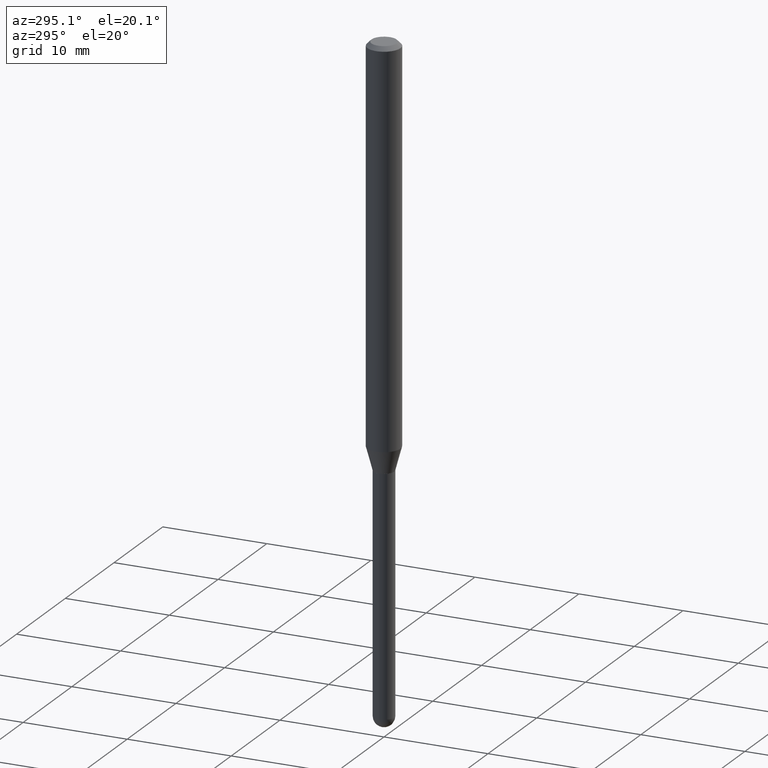
[diagram: clean part render]
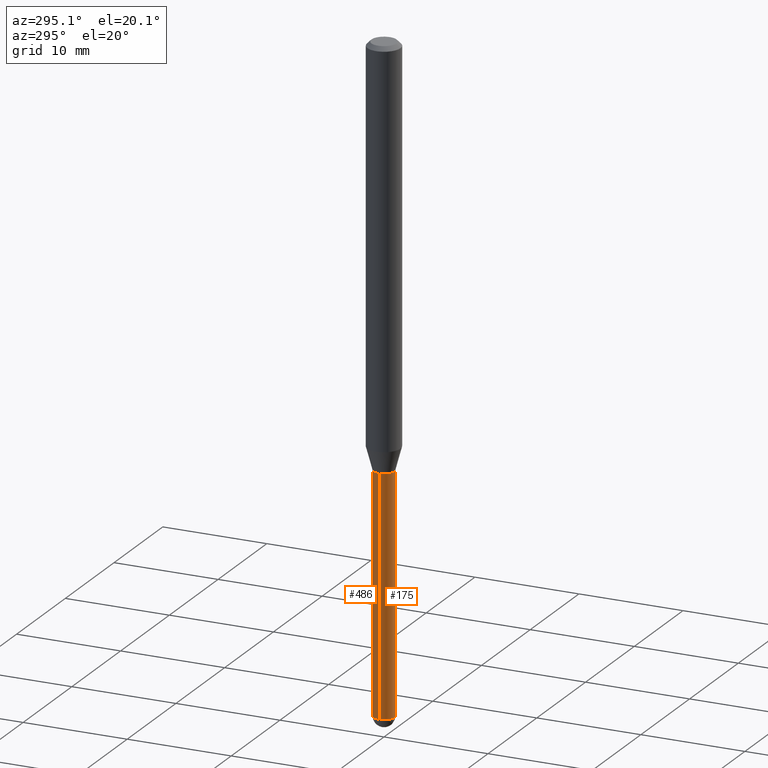
[diagram: same view with one multi-face feature highlighted, each face labeled with its STEP entity id]
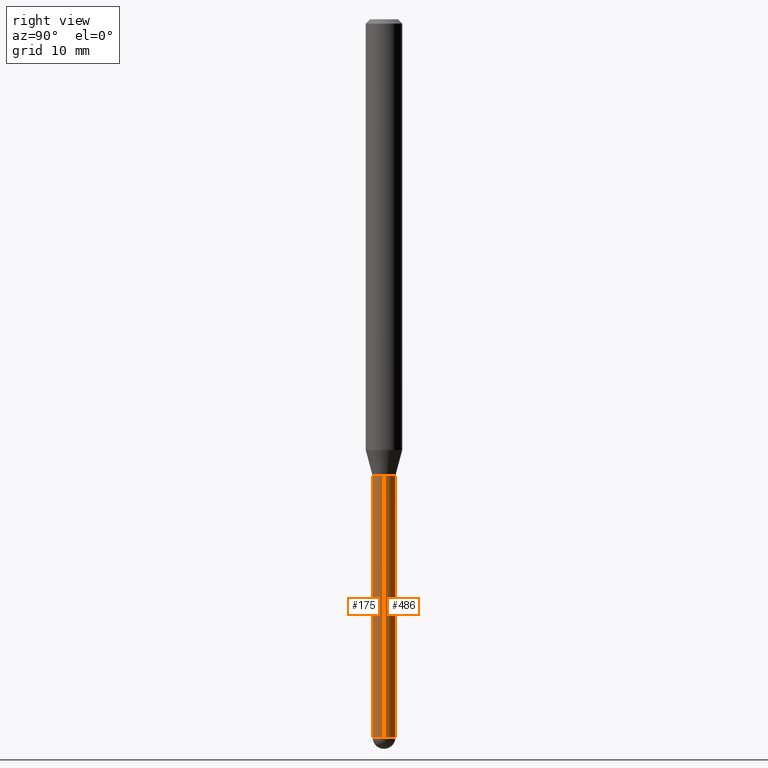
[diagram: same view with one multi-face feature highlighted, each face labeled with its STEP entity id]
A machine part, auxiliary view. The highlighted faces form ONE feature: a constant-radius fillet chain: 2 tangent blend faces with common blend radius 0.9906 mm. The faces share edges in the B-rep.
A second angle (right view) of the same feature is appended — it is thin or edge-on in the first view.
Their STEP definitions:
[1] entity #175 (Cylinder):
#20 = VERTEX_POINT ( 'NONE', #435 ) ;
#28 = DIRECTION ( 'NONE',  ( 1.000000000000000000, -6.982962677686283277E-15, 0.000000000000000000 ) ) ;
#31 = CARTESIAN_POINT ( 'NONE',  ( 0.03899999999999999994, -5.733012358380444123E-15, -1.564000000000000057 ) ) ;
#48 = DIRECTION ( 'NONE',  ( -2.445468806185136877E-29, 3.491481338843145188E-15, 1.000000000000000000 ) ) ;
#49 = VECTOR ( 'NONE', #48, 39.37007874015748143 ) ;
#54 = DIRECTION ( 'NONE',  ( 1.000000000000000000, -6.982962677686265922E-15, 4.876176775795935793E-29 ) ) ;
#59 = EDGE_LOOP ( 'NONE', ( #423, #439, #453, #292, #76 ) ) ;
#65 = EDGE_CURVE ( 'NONE', #66, #315, #254, .T. ) ;
#66 = VERTEX_POINT ( 'NONE', #413 ) ;
#76 = ORIENTED_EDGE ( 'NONE', *, *, #65, .F. ) ;
#78 = CIRCLE ( 'NONE', #418, 0.03899999999999999994 ) ;
#81 = CARTESIAN_POINT ( 'NONE',  ( -2.771116669463784777E-16, -0.03900000000000854172, -2.460999999999999854 ) ) ;
#97 = CARTESIAN_POINT ( 'NONE',  ( 3.824713212873553776E-29, -5.460676813950680100E-15, -1.564000000000000057 ) ) ;
#142 = CARTESIAN_POINT ( 'NONE',  ( 0.000000000000000000, 0.000000000000000000, 0.000000000000000000 ) ) ;
#149 = DIRECTION ( 'NONE',  ( -2.445468806185136597E-29, 3.491481338843145583E-15, 1.000000000000000000 ) ) ;
#166 = EDGE_CURVE ( 'NONE', #176, #243, #481, .T. ) ;
#175 = ADVANCED_FACE ( 'NONE', ( #488 ), #498, .T. ) ;
#176 = VERTEX_POINT ( 'NONE', #429 ) ;
#210 = DIRECTION ( 'NONE',  ( -2.445468806185136877E-29, 3.491481338843145188E-15, 1.000000000000000000 ) ) ;
#215 = AXIS2_PLACEMENT_3D ( 'NONE', #464, #380, #454 ) ;
#216 = VECTOR ( 'NONE', #210, 39.37007874015748143 ) ;
#220 = CARTESIAN_POINT ( 'NONE',  ( -0.03899999999999999994, 2.771116669464390721E-16, -1.918384685199413078E-30 ) ) ;
#243 = VERTEX_POINT ( 'NONE', #81 ) ;
#254 = CIRCLE ( 'NONE', #416, 0.03899999999999999994 ) ;
#269 = DIRECTION ( 'NONE',  ( -2.445468806185136597E-29, 3.491481338843145583E-15, 1.000000000000000000 ) ) ;
#271 = DIRECTION ( 'NONE',  ( 1.000000000000000000, -6.982962677686258033E-15, 0.000000000000000000 ) ) ;
#273 = EDGE_CURVE ( 'NONE', #20, #315, #445, .T. ) ;
#284 = DIRECTION ( 'NONE',  ( -2.445468806185136597E-29, 3.491481338843145583E-15, 1.000000000000000000 ) ) ;
#292 = ORIENTED_EDGE ( 'NONE', *, *, #273, .T. ) ;
#315 = VERTEX_POINT ( 'NONE', #31 ) ;
#352 = EDGE_CURVE ( 'NONE', #176, #66, #496, .T. ) ;
#380 = DIRECTION ( 'NONE',  ( -2.445468806185136597E-29, 3.491481338843145583E-15, 1.000000000000000000 ) ) ;
#390 = CARTESIAN_POINT ( 'NONE',  ( 6.018298732021620914E-29, -8.592535574892981353E-15, -2.460999999999999854 ) ) ;
#406 = CARTESIAN_POINT ( 'NONE',  ( 0.03899999999999999994, -2.723355444297643682E-16, 1.901708942560414931E-30 ) ) ;
#413 = CARTESIAN_POINT ( 'NONE',  ( -0.03899999999999999994, -6.749494527475391014E-15, -1.564000000000000057 ) ) ;
#416 = AXIS2_PLACEMENT_3D ( 'NONE', #97, #149, #271 ) ;
#418 = AXIS2_PLACEMENT_3D ( 'NONE', #390, #284, #28 ) ;
#423 = ORIENTED_EDGE ( 'NONE', *, *, #352, .F. ) ;
#429 = CARTESIAN_POINT ( 'NONE',  ( -0.03899999999999999994, -6.749494527475391014E-15, -2.460999999999999854 ) ) ;
#435 = CARTESIAN_POINT ( 'NONE',  ( 0.03899999999999999994, -7.298941738851594355E-15, -2.460999999999999854 ) ) ;
#436 = AXIS2_PLACEMENT_3D ( 'NONE', #142, #269, #54 ) ;
#439 = ORIENTED_EDGE ( 'NONE', *, *, #166, .T. ) ;
#445 = LINE ( 'NONE', #406, #49 ) ;
#453 = ORIENTED_EDGE ( 'NONE', *, *, #475, .T. ) ;
#454 = DIRECTION ( 'NONE',  ( 1.000000000000000000, -6.982962677686283277E-15, 0.000000000000000000 ) ) ;
#464 = CARTESIAN_POINT ( 'NONE',  ( 6.018298732021620914E-29, -8.592535574892981353E-15, -2.460999999999999854 ) ) ;
#475 = EDGE_CURVE ( 'NONE', #243, #20, #78, .T. ) ;
#481 = CIRCLE ( 'NONE', #215, 0.03899999999999999994 ) ;
#488 = FACE_OUTER_BOUND ( 'NONE', #59, .T. ) ;
#496 = LINE ( 'NONE', #220, #216 ) ;
#498 = CYLINDRICAL_SURFACE ( 'NONE', #436, 0.03899999999999999994 ) ;
[2] entity #486 (Cylinder):
#18 = DIRECTION ( 'NONE',  ( -2.445468806185136597E-29, 3.491481338843145583E-15, 1.000000000000000000 ) ) ;
#20 = VERTEX_POINT ( 'NONE', #435 ) ;
#31 = CARTESIAN_POINT ( 'NONE',  ( 0.03899999999999999994, -5.733012358380444123E-15, -1.564000000000000057 ) ) ;
#41 = EDGE_CURVE ( 'NONE', #315, #66, #311, .T. ) ;
#48 = DIRECTION ( 'NONE',  ( -2.445468806185136877E-29, 3.491481338843145188E-15, 1.000000000000000000 ) ) ;
#49 = VECTOR ( 'NONE', #48, 39.37007874015748143 ) ;
#66 = VERTEX_POINT ( 'NONE', #413 ) ;
#85 = CIRCLE ( 'NONE', #351, 0.03899999999999999994 ) ;
#96 = VERTEX_POINT ( 'NONE', #181 ) ;
#103 = AXIS2_PLACEMENT_3D ( 'NONE', #438, #277, #313 ) ;
#119 = CYLINDRICAL_SURFACE ( 'NONE', #103, 0.03899999999999999994 ) ;
#123 = ORIENTED_EDGE ( 'NONE', *, *, #352, .T. ) ;
#141 = ORIENTED_EDGE ( 'NONE', *, *, #41, .F. ) ;
#161 = AXIS2_PLACEMENT_3D ( 'NONE', #353, #233, #430 ) ;
#176 = VERTEX_POINT ( 'NONE', #429 ) ;
#181 = CARTESIAN_POINT ( 'NONE',  ( 2.723355444298241737E-16, 0.03899999999999134714, -2.460999999999999854 ) ) ;
#201 = EDGE_CURVE ( 'NONE', #20, #96, #85, .T. ) ;
#210 = DIRECTION ( 'NONE',  ( -2.445468806185136877E-29, 3.491481338843145188E-15, 1.000000000000000000 ) ) ;
#216 = VECTOR ( 'NONE', #210, 39.37007874015748143 ) ;
#220 = CARTESIAN_POINT ( 'NONE',  ( -0.03899999999999999994, 2.771116669464390721E-16, -1.918384685199413078E-30 ) ) ;
#233 = DIRECTION ( 'NONE',  ( -2.445468806185136597E-29, 3.491481338843145583E-15, 1.000000000000000000 ) ) ;
#240 = ORIENTED_EDGE ( 'NONE', *, *, #511, .T. ) ;
#272 = FACE_OUTER_BOUND ( 'NONE', #297, .T. ) ;
#273 = EDGE_CURVE ( 'NONE', #20, #315, #445, .T. ) ;
#276 = AXIS2_PLACEMENT_3D ( 'NONE', #316, #472, #358 ) ;
#277 = DIRECTION ( 'NONE',  ( -2.445468806185136597E-29, 3.491481338843145583E-15, 1.000000000000000000 ) ) ;
#297 = EDGE_LOOP ( 'NONE', ( #240, #123, #141, #350, #331 ) ) ;
#300 = CARTESIAN_POINT ( 'NONE',  ( 6.018298732021620914E-29, -8.592535574892981353E-15, -2.460999999999999854 ) ) ;
#311 = CIRCLE ( 'NONE', #276, 0.03899999999999999994 ) ;
#313 = DIRECTION ( 'NONE',  ( 1.000000000000000000, -6.982962677686265922E-15, 4.876176775795935793E-29 ) ) ;
#315 = VERTEX_POINT ( 'NONE', #31 ) ;
#316 = CARTESIAN_POINT ( 'NONE',  ( 3.824713212873553776E-29, -5.460676813950680100E-15, -1.564000000000000057 ) ) ;
#331 = ORIENTED_EDGE ( 'NONE', *, *, #201, .T. ) ;
#350 = ORIENTED_EDGE ( 'NONE', *, *, #273, .F. ) ;
#351 = AXIS2_PLACEMENT_3D ( 'NONE', #300, #18, #456 ) ;
#352 = EDGE_CURVE ( 'NONE', #176, #66, #496, .T. ) ;
#353 = CARTESIAN_POINT ( 'NONE',  ( 6.018298732021620914E-29, -8.592535574892981353E-15, -2.460999999999999854 ) ) ;
#358 = DIRECTION ( 'NONE',  ( 1.000000000000000000, -6.982962677686258033E-15, 0.000000000000000000 ) ) ;
#376 = CIRCLE ( 'NONE', #161, 0.03899999999999999994 ) ;
#406 = CARTESIAN_POINT ( 'NONE',  ( 0.03899999999999999994, -2.723355444297643682E-16, 1.901708942560414931E-30 ) ) ;
#413 = CARTESIAN_POINT ( 'NONE',  ( -0.03899999999999999994, -6.749494527475391014E-15, -1.564000000000000057 ) ) ;
#429 = CARTESIAN_POINT ( 'NONE',  ( -0.03899999999999999994, -6.749494527475391014E-15, -2.460999999999999854 ) ) ;
#430 = DIRECTION ( 'NONE',  ( 1.000000000000000000, -6.982962677686283277E-15, 0.000000000000000000 ) ) ;
#435 = CARTESIAN_POINT ( 'NONE',  ( 0.03899999999999999994, -7.298941738851594355E-15, -2.460999999999999854 ) ) ;
#438 = CARTESIAN_POINT ( 'NONE',  ( 0.000000000000000000, 0.000000000000000000, 0.000000000000000000 ) ) ;
#445 = LINE ( 'NONE', #406, #49 ) ;
#456 = DIRECTION ( 'NONE',  ( 1.000000000000000000, -6.982962677686283277E-15, 0.000000000000000000 ) ) ;
#472 = DIRECTION ( 'NONE',  ( -2.445468806185136597E-29, 3.491481338843145583E-15, 1.000000000000000000 ) ) ;
#486 = ADVANCED_FACE ( 'NONE', ( #272 ), #119, .T. ) ;
#496 = LINE ( 'NONE', #220, #216 ) ;
#511 = EDGE_CURVE ( 'NONE', #96, #176, #376, .T. ) ;